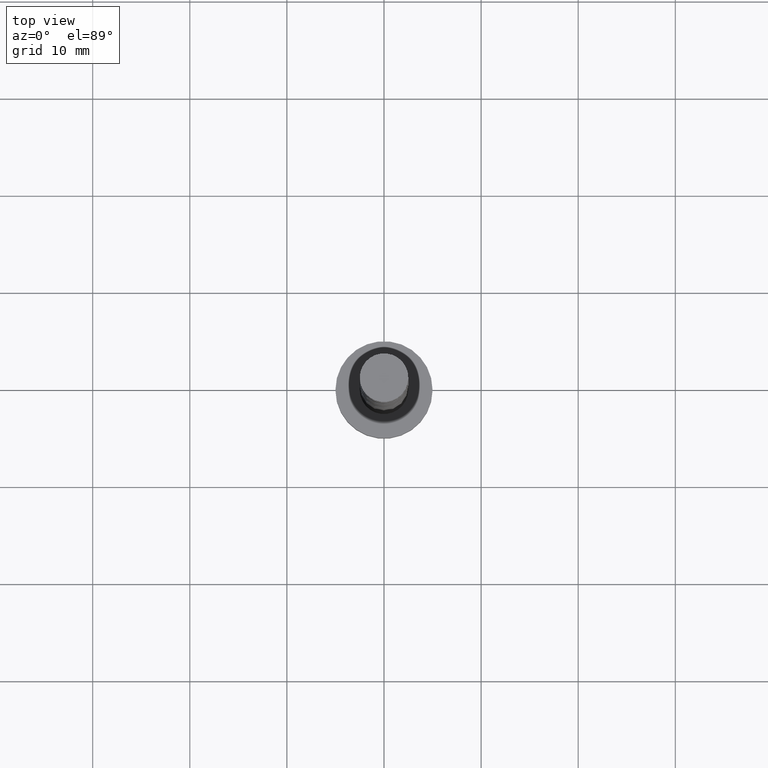
[diagram: clean part render]
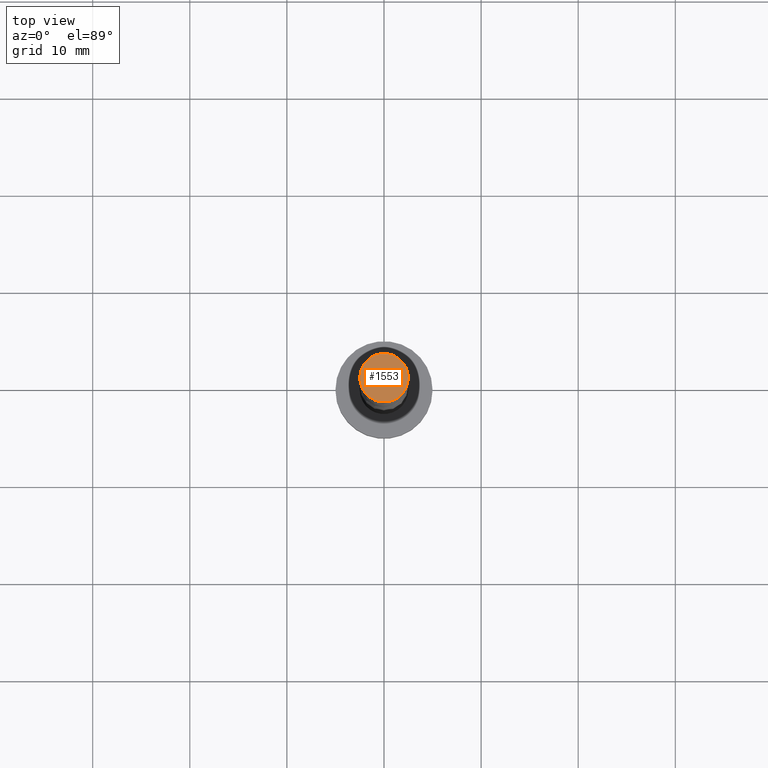
[diagram: same view with one face highlighted and labeled with its STEP entity id]
A machine part, top view. The second image highlights one B-rep face of the part: STEP entity #1553.
In plain terms, the highlighted planar face has unit normal (0, 0, 1).
Its self-contained STEP definition (entity closure, byte-faithful):
#6 = DIRECTION ( 'NONE',  ( 1.000000000000000000, 0.000000000000000000, -0.000000000000000000 ) ) ;
#12 = CARTESIAN_POINT ( 'NONE',  ( 2.500000000000000000, 3.061616997868383141E-16, 74.00000000000000000 ) ) ;
#76 = CARTESIAN_POINT ( 'NONE',  ( 0.000000000000000000, 0.000000000000000000, 74.00000000000000000 ) ) ;
#161 = VERTEX_POINT ( 'NONE', #12 ) ;
#259 = CARTESIAN_POINT ( 'NONE',  ( 0.000000000000000000, 0.000000000000000000, 74.00000000000000000 ) ) ;
#266 = FACE_OUTER_BOUND ( 'NONE', #1333, .T. ) ;
#282 = AXIS2_PLACEMENT_3D ( 'NONE', #737, #984, #6 ) ;
#449 = DIRECTION ( 'NONE',  ( 1.000000000000000000, 0.000000000000000000, 0.000000000000000000 ) ) ;
#560 = AXIS2_PLACEMENT_3D ( 'NONE', #76, #787, #778 ) ;
#599 = CIRCLE ( 'NONE', #657, 2.500000000000000000 ) ;
#626 = EDGE_CURVE ( 'NONE', #1120, #161, #1301, .T. ) ;
#651 = CARTESIAN_POINT ( 'NONE',  ( -2.500000000000000000, 0.000000000000000000, 74.00000000000000000 ) ) ;
#657 = AXIS2_PLACEMENT_3D ( 'NONE', #259, #741, #449 ) ;
#737 = CARTESIAN_POINT ( 'NONE',  ( 0.000000000000000000, 0.000000000000000000, 74.00000000000000000 ) ) ;
#741 = DIRECTION ( 'NONE',  ( 0.000000000000000000, 0.000000000000000000, 1.000000000000000000 ) ) ;
#763 = ORIENTED_EDGE ( 'NONE', *, *, #1077, .T. ) ;
#778 = DIRECTION ( 'NONE',  ( 1.000000000000000000, 0.000000000000000000, 0.000000000000000000 ) ) ;
#787 = DIRECTION ( 'NONE',  ( 0.000000000000000000, 0.000000000000000000, 1.000000000000000000 ) ) ;
#973 = PLANE ( 'NONE',  #282 ) ;
#982 = ORIENTED_EDGE ( 'NONE', *, *, #626, .T. ) ;
#984 = DIRECTION ( 'NONE',  ( 0.000000000000000000, 0.000000000000000000, 1.000000000000000000 ) ) ;
#1077 = EDGE_CURVE ( 'NONE', #161, #1120, #599, .T. ) ;
#1120 = VERTEX_POINT ( 'NONE', #651 ) ;
#1301 = CIRCLE ( 'NONE', #560, 2.500000000000000000 ) ;
#1333 = EDGE_LOOP ( 'NONE', ( #982, #763 ) ) ;
#1553 = ADVANCED_FACE ( 'NONE', ( #266 ), #973, .T. ) ;